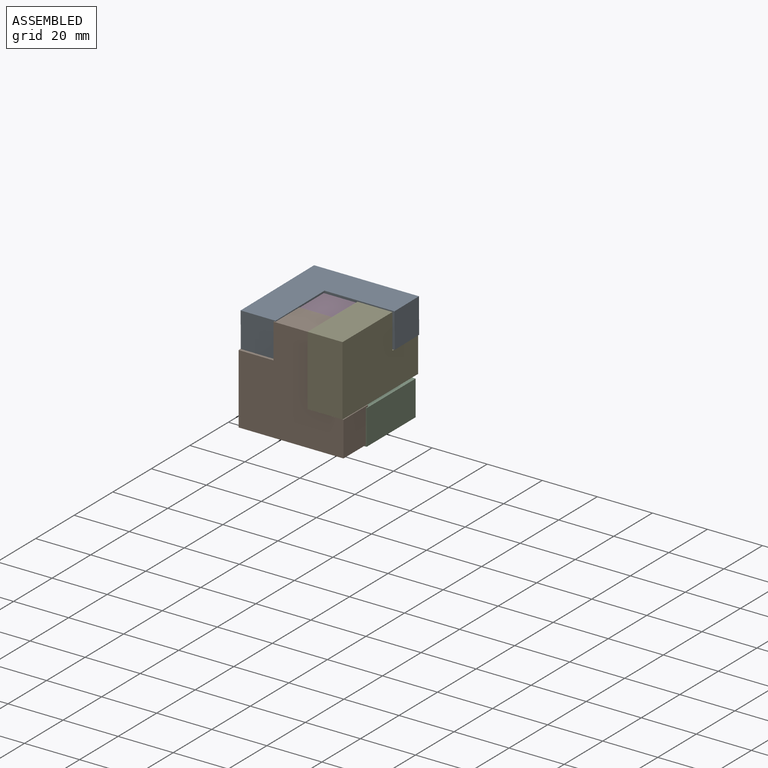
[diagram: assembled view]
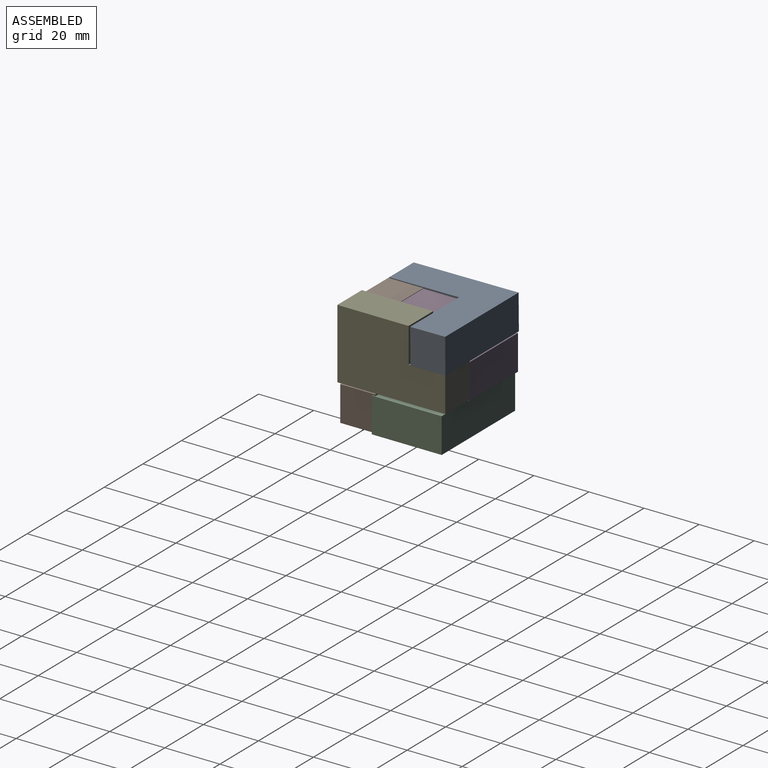
[diagram: assembled view, second angle]
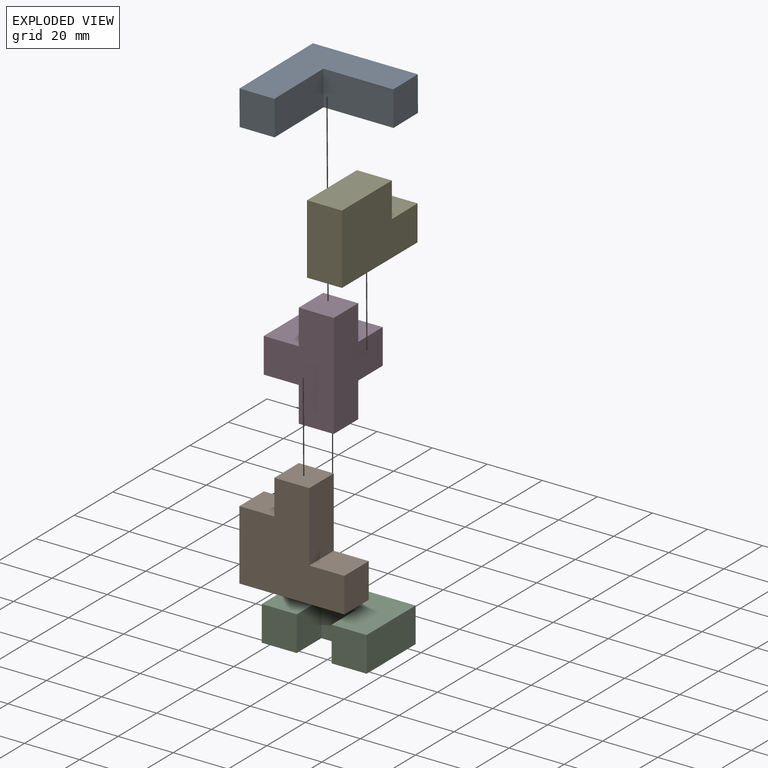
[diagram: exploded view]
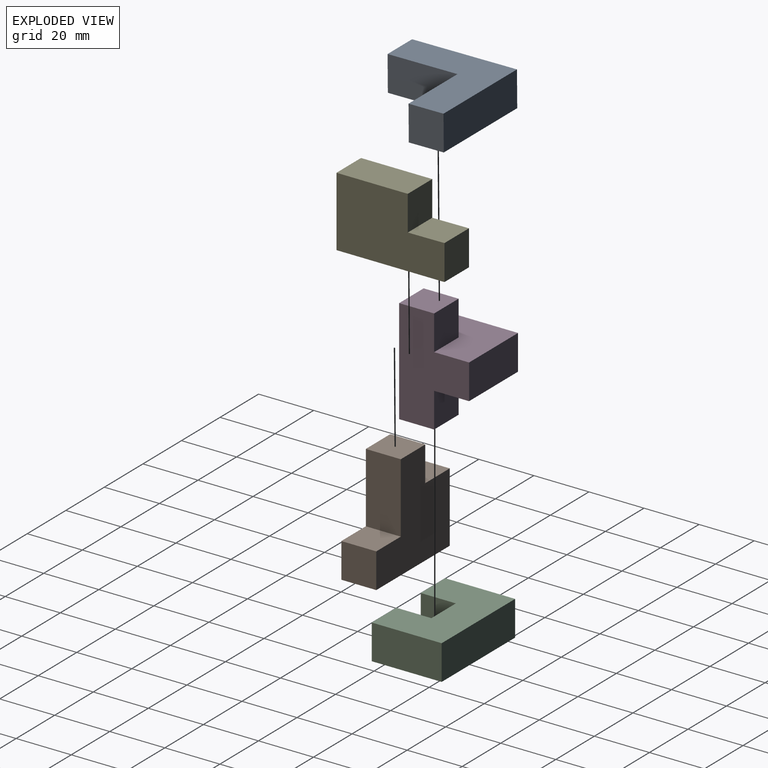
[diagram: exploded view, second angle]
ASSEMBLY  parts=5 mates=7
PART A: 8 faces, bbox 38.1x12.7x38.1 mm
  f0: plane 12.7x12.7mm, normal (0,0,1), area 161.3mm2, adj f1,f5,f6,f7
  f1: plane 38.1x12.7mm, normal (-1,0,0), area 483.9mm2, adj f0,f2,f6,f7
  f2: plane 38.1x12.7mm, normal (0,0,-1), area 483.9mm2, adj f1,f3,f6,f7
  f3: plane 12.7x12.7mm, normal (1,0,0), area 161.3mm2, adj f2,f4,f6,f7
  f4: plane 25.4x12.7mm, normal (0,0,1), area 322.6mm2, adj f3,f5,f6,f7
  f5: plane 25.4x12.7mm, normal (1,0,0), area 322.6mm2, adj f0,f4,f6,f7
  f6: plane 38.1x38.1mm, normal (0,-1,0), area 806.4mm2, adj f0,f1,f2,f3,f4,f5
  f7: plane 38.1x38.1mm, normal (0,1,0), area 806.4mm2, adj f0,f1,f2,f3,f4,f5
PART B: 10 faces, bbox 38.1x12.7x38.1 mm
  f0: plane 12.7x12.7mm, normal (0,0,1), area 161.3mm2, adj f1,f7,f8,f9
  f1: plane 12.7x12.7mm, normal (-1,0,0), area 161.3mm2, adj f0,f2,f8,f9
  f2: plane 38.1x12.7mm, normal (0,0,-1), area 483.9mm2, adj f1,f3,f8,f9
  f3: plane 25.4x12.7mm, normal (1,0,0), area 322.6mm2, adj f2,f4,f8,f9
  f4: plane 12.7x12.7mm, normal (0,0,1), area 161.3mm2, adj f3,f5,f8,f9
  f5: plane 12.7x12.7mm, normal (1,0,0), area 161.3mm2, adj f4,f6,f8,f9
  f6: plane 12.7x12.7mm, normal (0,0,1), area 161.3mm2, adj f5,f7,f8,f9
  f7: plane 25.4x12.7mm, normal (-1,0,0), area 322.6mm2, adj f0,f6,f8,f9
  f8: plane 38.1x38.1mm, normal (0,-1,0), area 967.7mm2, adj f0,f1,f2,f3,f4,f5,f6,f7
  f9: plane 38.1x38.1mm, normal (0,1,0), area 967.7mm2, adj f0,f1,f2,f3,f4,f5,f6,f7
PART C: 10 faces, bbox 38.1x12.7x25.4 mm
  f0: plane 38.1x12.7mm, normal (0,0,-1), area 483.9mm2, adj f1,f7,f8,f9
  f1: plane 25.4x12.7mm, normal (1,0,0), area 322.6mm2, adj f0,f2,f8,f9
  f2: plane 12.7x12.7mm, normal (0,0,1), area 161.3mm2, adj f1,f3,f8,f9
  f3: plane 12.78x12.7mm, normal (-1,0,0), area 162.3mm2, adj f2,f4,f8,f9
  f4: plane 12.7x12.7mm, normal (0,0,1), area 161.3mm2, adj f3,f5,f8,f9
  f5: plane 12.78x12.7mm, normal (1,0,0), area 162.3mm2, adj f4,f6,f8,f9
  f6: plane 12.7x12.7mm, normal (0,0,1), area 161.3mm2, adj f5,f7,f8,f9
  f7: plane 25.4x12.7mm, normal (-1,0,0), area 322.6mm2, adj f0,f6,f8,f9
  f8: plane 38.1x25.4mm, normal (0,-1,0), area 805.5mm2, adj f0,f1,f2,f3,f4,f5,f6,f7
  f9: plane 38.1x25.4mm, normal (0,1,0), area 805.5mm2, adj f0,f1,f2,f3,f4,f5,f6,f7
PART D: 12 faces, bbox 25.4x25.4x38.1 mm
  f0: plane 12.7x12.7mm, normal (1,0,0), area 161.3mm2, adj f1,f4,f7,f8
  f1: plane 12.7x12.7mm, normal (0,-1,0), area 161.3mm2, adj f0,f4,f5,f8
  f2: plane 12.7x12.7mm, normal (0,0,-1), area 161.3mm2, adj f3,f5,f6,f7
  f3: plane 12.7x12.7mm, normal (1,0,0), area 161.3mm2, adj f2,f6,f7,f9
  f4: plane 12.7x12.7mm, normal (0,0,1), area 161.3mm2, adj f0,f1,f5,f7
  f5: plane 38.1x25.4mm, normal (-1,0,0), area 645.2mm2, adj f1,f2,f4,f6,f7,f8,f9,f10
  f6: plane 12.7x12.7mm, normal (0,-1,0), area 161.3mm2, adj f2,f3,f5,f9
  f7: plane 38.1x25.4mm, normal (0,1,0), area 645.2mm2, adj f0,f2,f3,f4,f5,f8,f9,f11
  f8: plane 25.4x25.4mm, normal (0,0,1), area 483.9mm2, adj f0,f1,f5,f7,f10,f11
  f9: plane 25.4x25.4mm, normal (0,0,-1), area 483.9mm2, adj f3,f5,f6,f7,f10,f11
  f10: plane 25.4x12.7mm, normal (0,-1,0), area 322.6mm2, adj f5,f8,f9,f11
  f11: plane 25.4x12.7mm, normal (1,0,0), area 322.6mm2, adj f7,f8,f9,f10
PART E: 8 faces, bbox 25.4x12.7x39.2 mm
  f0: plane 13.34x12.7mm, normal (1,0,-0.01), area 169.4mm2, adj f1,f5,f6,f7
  f1: plane 12.8x12.7mm, normal (0,0,1), area 162.6mm2, adj f0,f2,f6,f7
  f2: plane 39.21x12.7mm, normal (-1,0,0), area 498mm2, adj f1,f3,f6,f7
  f3: plane 25.4x12.7mm, normal (0,0,-1), area 322.6mm2, adj f2,f4,f6,f7
  f4: plane 25.88x12.7mm, normal (1,0,0), area 328.6mm2, adj f3,f5,f6,f7
  f5: plane 12.7x12.7mm, normal (0,0,1), area 161.3mm2, adj f0,f4,f6,f7
  f6: plane 39.21x25.4mm, normal (0,-1,0), area 827.3mm2, adj f0,f1,f2,f3,f4,f5
  f7: plane 39.21x25.4mm, normal (0,1,0), area 827.3mm2, adj f0,f1,f2,f3,f4,f5
PLACE A rot(axis=(-0.58,0.58,-0.58),119.7deg) t=(-41.33,-16.35,44.87)mm
PLACE B rot(axis=(0,0,-1),180deg) t=(-3.72,-54.9,18.87)mm
PLACE C rot(axis=(1,0,0),90deg) t=(-41.56,-17.87,31.02)mm
PLACE D rot(axis=(0,0,-1),180deg) t=(-16.16,-42.2,18.72)mm
PLACE E rot(axis=(-0.58,-0.58,-0.58),120deg) t=(-3.46,-55.76,32.06)mm
MATE planar D.f3 <-> C.f5  axis (-1,0,0) through (-28.86,-35.85,25.07)mm
MATE parallel D.f7 <-> C.f6  axis (0,-1,0) through (-25.68,-42.2,37.77)mm
MATE parallel B.f1 <-> C.f1  axis (1,0,0) through (-3.72,-48.55,25.22)mm
MATE planar A.f7 <-> E.f0  axis (0,0.01,-1) through (-27.36,-30.32,44.76)mm
MATE planar B.f8 <-> D.f7  axis (0,1,0) through (-24.89,-42.2,33.69)mm
MATE parallel B.f6 <-> D.f4  axis (0,0,1) through (-22.77,-48.55,56.97)mm
MATE planar E.f6 <-> D.f5  axis (-1,0,0) through (-16.16,-38.79,43.46)mm
